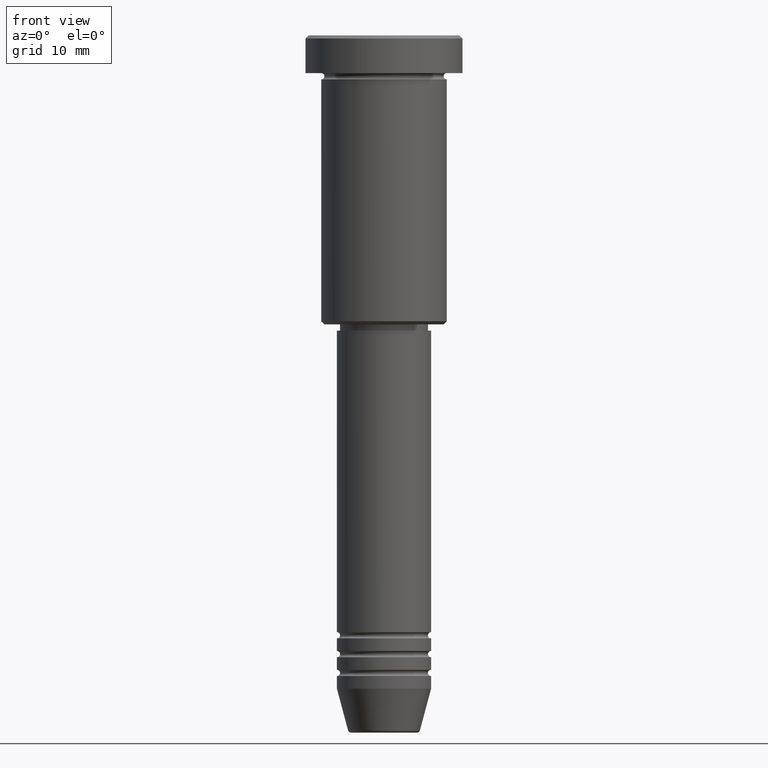
[diagram: clean part render]
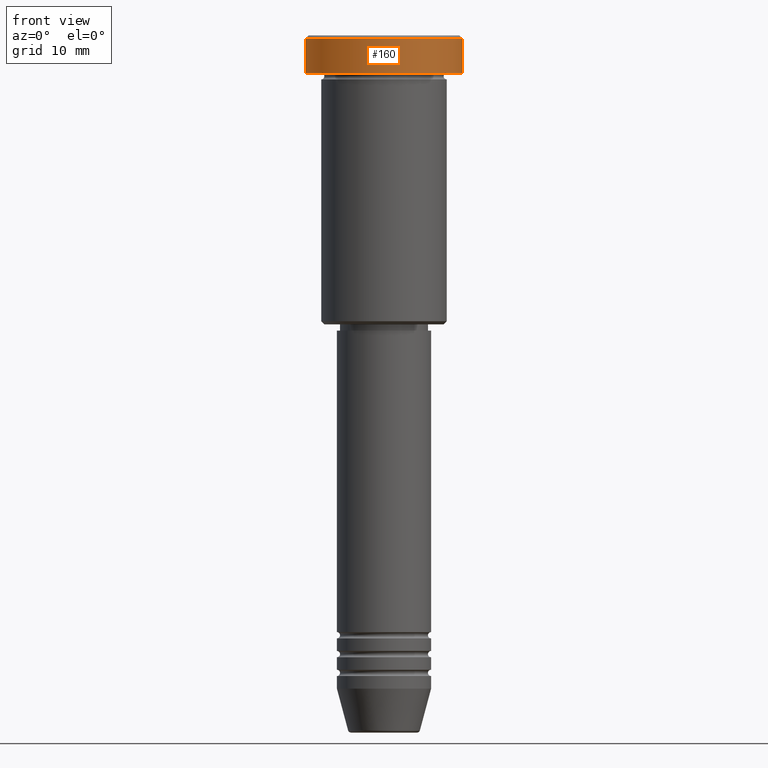
[diagram: same view with one face highlighted and labeled with its STEP entity id]
A machine part, front view. The second image highlights one B-rep face of the part: STEP entity #160.
In plain terms, the highlighted cylindrical surface (partial cylindrical patch) has radius 12.5 mm, axis along (-0, -0, 1).
Its self-contained STEP definition (entity closure, byte-faithful):
#2 = LINE ( 'NONE', #109, #115 ) ;
#3 = CARTESIAN_POINT ( 'NONE',  ( 0.000000000000000000, 0.000000000000000000, -5.999999999999996447 ) ) ;
#10 = DIRECTION ( 'NONE',  ( 1.000000000000000000, 0.000000000000000000, 0.000000000000000000 ) ) ;
#79 = EDGE_CURVE ( 'NONE', #158, #593, #2, .T. ) ;
#90 = AXIS2_PLACEMENT_3D ( 'NONE', #3, #554, #10 ) ;
#109 = CARTESIAN_POINT ( 'NONE',  ( -12.50000000000000000, 1.530808498934191521E-15, 0.000000000000000000 ) ) ;
#115 = VECTOR ( 'NONE', #191, 1000.000000000000000 ) ;
#124 = ORIENTED_EDGE ( 'NONE', *, *, #698, .T. ) ;
#147 = LINE ( 'NONE', #520, #524 ) ;
#158 = VERTEX_POINT ( 'NONE', #498 ) ;
#160 = ADVANCED_FACE ( 'NONE', ( #1055 ), #777, .T. ) ;
#186 = CIRCLE ( 'NONE', #562, 12.50000000000000000 ) ;
#191 = DIRECTION ( 'NONE',  ( -0.000000000000000000, -0.000000000000000000, 1.000000000000000000 ) ) ;
#227 = DIRECTION ( 'NONE',  ( -0.000000000000000000, -0.000000000000000000, 1.000000000000000000 ) ) ;
#238 = DIRECTION ( 'NONE',  ( 1.000000000000000000, 0.000000000000000000, 0.000000000000000000 ) ) ;
#292 = EDGE_CURVE ( 'NONE', #505, #593, #186, .T. ) ;
#349 = DIRECTION ( 'NONE',  ( 0.000000000000000000, 0.000000000000000000, -1.000000000000000000 ) ) ;
#413 = ORIENTED_EDGE ( 'NONE', *, *, #79, .F. ) ;
#423 = EDGE_LOOP ( 'NONE', ( #413, #1167, #124, #923 ) ) ;
#470 = CARTESIAN_POINT ( 'NONE',  ( 12.50000000000000000, 0.000000000000000000, -0.5000000000000056621 ) ) ;
#476 = CARTESIAN_POINT ( 'NONE',  ( -12.50000000000000000, 1.530808498934191521E-15, -0.5000000000000056621 ) ) ;
#483 = CARTESIAN_POINT ( 'NONE',  ( 0.000000000000000000, 0.000000000000000000, 0.000000000000000000 ) ) ;
#498 = CARTESIAN_POINT ( 'NONE',  ( -12.50000000000000000, 1.530808498934191521E-15, -5.999999999999996447 ) ) ;
#505 = VERTEX_POINT ( 'NONE', #470 ) ;
#520 = CARTESIAN_POINT ( 'NONE',  ( 12.50000000000000000, 0.000000000000000000, 0.000000000000000000 ) ) ;
#521 = CARTESIAN_POINT ( 'NONE',  ( 0.000000000000000000, 0.000000000000000000, -0.5000000000000056621 ) ) ;
#524 = VECTOR ( 'NONE', #1168, 1000.000000000000000 ) ;
#554 = DIRECTION ( 'NONE',  ( -0.000000000000000000, -0.000000000000000000, 1.000000000000000000 ) ) ;
#562 = AXIS2_PLACEMENT_3D ( 'NONE', #521, #349, #1093 ) ;
#593 = VERTEX_POINT ( 'NONE', #476 ) ;
#680 = AXIS2_PLACEMENT_3D ( 'NONE', #483, #227, #238 ) ;
#698 = EDGE_CURVE ( 'NONE', #932, #505, #147, .T. ) ;
#719 = CARTESIAN_POINT ( 'NONE',  ( 12.50000000000000000, 0.000000000000000000, -5.999999999999996447 ) ) ;
#777 = CYLINDRICAL_SURFACE ( 'NONE', #680, 12.50000000000000000 ) ;
#797 = EDGE_CURVE ( 'NONE', #158, #932, #1123, .T. ) ;
#923 = ORIENTED_EDGE ( 'NONE', *, *, #292, .T. ) ;
#932 = VERTEX_POINT ( 'NONE', #719 ) ;
#1055 = FACE_OUTER_BOUND ( 'NONE', #423, .T. ) ;
#1093 = DIRECTION ( 'NONE',  ( 1.000000000000000000, 0.000000000000000000, 0.000000000000000000 ) ) ;
#1123 = CIRCLE ( 'NONE', #90, 12.50000000000000000 ) ;
#1167 = ORIENTED_EDGE ( 'NONE', *, *, #797, .T. ) ;
#1168 = DIRECTION ( 'NONE',  ( -0.000000000000000000, -0.000000000000000000, 1.000000000000000000 ) ) ;